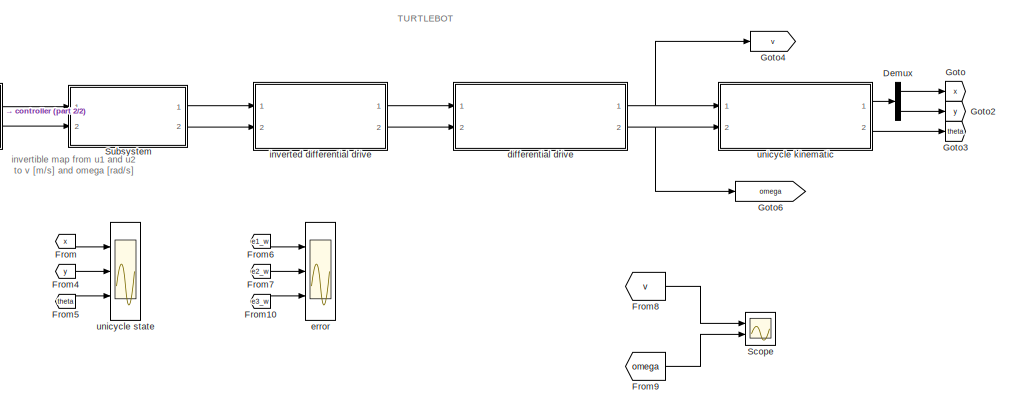
[diagram: root canvas - part 1/2, right side, full height]
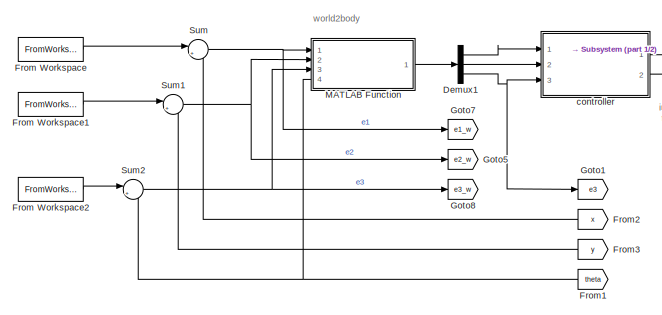
[diagram: root canvas - part 2/2, middle left region]
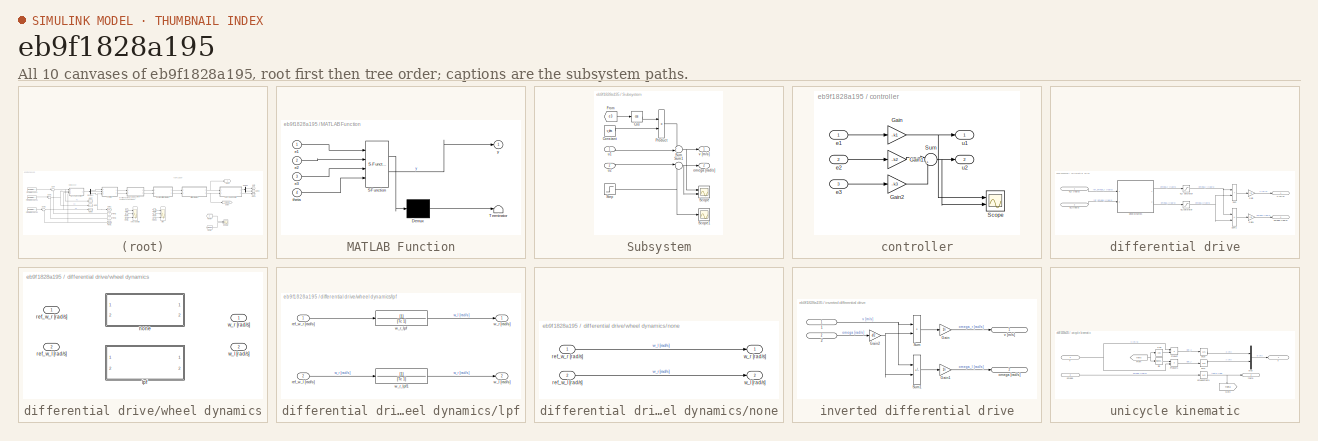
[diagram: thumbnail index - all 10 canvases of the model, root first then tree order]
MODEL slx_eb9f1828a195
KIND model
CONFIG AbsTol = auto
CONFIG EnableMultiTasking = off
CONFIG FixedStep = auto
CONFIG MaxStep = auto
CONFIG MinStep = auto
CONFIG RelTol = 1e-3
CONFIG SampleTimeConstraint = Unconstrained
CONFIG SolverName = VariableStepAuto
CONFIG StartTime = 0.0
CONFIG StopTime = 360
BLOCK [Demux] Demux
  Outputs = 2
  Ports = [1, 2]
BLOCK [Demux] Demux1
  Outputs = 3
  Ports = [1, 3]
BLOCK [From] From
  GotoTag = x
BLOCK [FromWorkspace] From Workspace
  VariableName = coords_x
BLOCK [FromWorkspace] From Workspace1
  VariableName = coords_y
BLOCK [FromWorkspace] From Workspace2
  VariableName = theta_des
BLOCK [From] From1
  GotoTag = theta
  NameLocation = top
BLOCK [From] From10
  GotoTag = e3_w
  TagVisibility = global
BLOCK [From] From2
  GotoTag = x
  NameLocation = top
BLOCK [From] From3
  GotoTag = y
  NameLocation = top
BLOCK [From] From4
  GotoTag = y
BLOCK [From] From5
  GotoTag = theta
BLOCK [From] From6
  GotoTag = e1_w
  TagVisibility = global
BLOCK [From] From7
  GotoTag = e2_w
  TagVisibility = global
BLOCK [From] From8
  GotoTag = v
BLOCK [From] From9
  GotoTag = omega
BLOCK [Goto] Goto
  GotoTag = x
BLOCK [Goto] Goto1
  GotoTag = e3
  TagVisibility = global
BLOCK [Goto] Goto2
  GotoTag = y
BLOCK [Goto] Goto3
  GotoTag = theta
BLOCK [Goto] Goto4
  GotoTag = v
BLOCK [Goto] Goto5
  GotoTag = e2_w
  TagVisibility = global
BLOCK [Goto] Goto6
  GotoTag = omega
BLOCK [Goto] Goto7
  GotoTag = e1_w
  TagVisibility = global
BLOCK [Goto] Goto8
  GotoTag = e3_w
  TagVisibility = global
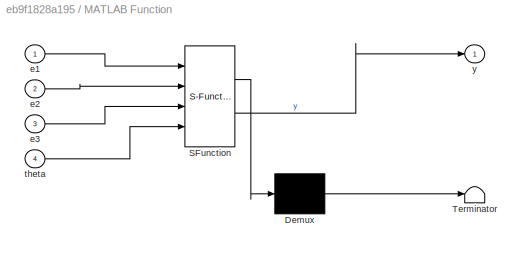
BLOCK [SubSystem] MATLAB Function
  ErrorFcn = Stateflow.Translate.translate
  PermitHierarchicalResolution = ExplicitOnly
  Ports = [4, 1]
  RequestExecContextInheritance = off
  SFBlockType = MATLAB Function
  TreatAsAtomicUnit = on
BLOCK [Demux] MATLAB Function/ Demux 
  Outputs = 1
  Ports = [1, 1]
BLOCK [S-Function] MATLAB Function/ SFunction 
  EnableBusSupport = on
  FunctionName = sf_sfun
  PortCounts = [4 2]
  Ports = [4, 2]
  SFcnIsStateOwnerBlock = off
  SFunctionDeploymentMode = off
  Tag = Stateflow S-Function 2
BLOCK [Terminator] MATLAB Function/ Terminator 
BLOCK [Inport] MATLAB Function/e1
BLOCK [Inport] MATLAB Function/e2
  Port = 2
BLOCK [Inport] MATLAB Function/e3
  Port = 3
BLOCK [Inport] MATLAB Function/theta
  Port = 4
BLOCK [Outport] MATLAB Function/y
BLOCK [Scope] Scope
  Floating = off
  NumInputPorts = 2
  Ports = [2]
  ScopeSpecificationString = Simulink.scopes.TimeScopeBlockCfg('CurrentConfiguration', extmgr.ConfigurationSet(extmgr.Configuration('Core','General UI',true),extmgr.Configuration('Core','Source UI',true),extmgr.Configuration('Sources','WiredSimulink',true,'DataLoggingVariableName','ScopeData1'),extmgr.Configuration('Visuals','Time Domain',true,'SerializedDisplays',{struct('MinYLimReal','-0.04863','MaxYLimReal','0.4377','YLabe...<+2072ch>
BLOCK [SubSystem] Subsystem
  NameLocation = top
  Ports = [2, 2]
  RequestExecContextInheritance = off
BLOCK [Constant] Subsystem/Constant
  Value = v_des
BLOCK [Trigonometry] Subsystem/Cos
  Operator = cos
  Ports = [1, 1]
BLOCK [From] Subsystem/From
  GotoTag = e3
  TagVisibility = global
BLOCK [Product] Subsystem/Product
  Ports = [2, 1]
BLOCK [Scope] Subsystem/Scope
  Floating = off
  NumInputPorts = 2
  Ports = [2]
  ScopeSpecificationString = Simulink.scopes.TimeScopeBlockCfg('CurrentConfiguration', extmgr.ConfigurationSet(extmgr.Configuration('Core','General UI',true),extmgr.Configuration('Core','Source UI',true),extmgr.Configuration('Sources','WiredSimulink',true,'DataLoggingVariableName','ScopeData1'),extmgr.Configuration('Visuals','Time Domain',true,'SerializedDisplays',{struct('MinYLimReal','-30.89803','MaxYLimReal','265.4994','YL...<+1427ch>
BLOCK [Scope] Subsystem/Scope1
  Floating = off
  NumInputPorts = 1
  Ports = [1]
  ScopeSpecificationString = Simulink.scopes.TimeScopeBlockCfg('CurrentConfiguration', extmgr.ConfigurationSet(extmgr.Configuration('Core','General UI',true),extmgr.Configuration('Core','Source UI',true),extmgr.Configuration('Sources','WiredSimulink',true,'DataLoggingVariableName','ScopeData1'),extmgr.Configuration('Visuals','Time Domain',true,'SerializedDisplays',{struct('MinYLimReal','-30.89803','MaxYLimReal','265.4994','YL...<+1417ch>
BLOCK [Step] Subsystem/Step
  After = w_des
  SampleTime = 0
  Time = rect_samples*Ts
BLOCK [Sum] Subsystem/Sum
  Inputs = +-|
  Ports = [2, 1]
BLOCK [Sum] Subsystem/Sum1
  Inputs = |-+
  Ports = [2, 1]
BLOCK [Outport] Subsystem/omega [rad//s]
  Port = 2
BLOCK [Inport] Subsystem/u1
BLOCK [Inport] Subsystem/u2
  Port = 2
BLOCK [Outport] Subsystem/v [m//s]
BLOCK [Sum] Sum
  Inputs = |+-
  Ports = [2, 1]
BLOCK [Sum] Sum1
  Inputs = |+-
  Ports = [2, 1]
BLOCK [Sum] Sum2
  Inputs = |+-
  Ports = [2, 1]
BLOCK [SubSystem] controller
  Ports = [3, 2]
  RequestExecContextInheritance = off
BLOCK [Gain] controller/Gain
  Gain = - k1
BLOCK [Gain] controller/Gain1
  Gain = - k2
BLOCK [Gain] controller/Gain2
  Gain = - k3
BLOCK [Scope] controller/Scope
  Floating = off
  NumInputPorts = 2
  Ports = [2]
  ScopeSpecificationString = Simulink.scopes.TimeScopeBlockCfg('CurrentConfiguration', extmgr.ConfigurationSet(extmgr.Configuration('Core','General UI',true),extmgr.Configuration('Core','Source UI',true),extmgr.Configuration('Sources','WiredSimulink',true,'DataLoggingVariableName','ScopeData2'),extmgr.Configuration('Visuals','Time Domain',true,'SerializedDisplays',{struct('MinYLimReal','-0.86576','MaxYLimReal','0.09622','YLab...<+2085ch>
BLOCK [Sum] controller/Sum
  Inputs = |++
  Ports = [2, 1]
BLOCK [Inport] controller/e1
BLOCK [Inport] controller/e2
  Port = 2
BLOCK [Inport] controller/e3
  Port = 3
BLOCK [Outport] controller/u1
BLOCK [Outport] controller/u2
  Port = 2
BLOCK [SubSystem] differential drive
  Ports = [2, 2]
  RequestExecContextInheritance = off
BLOCK [Gain] differential drive/Gain
  Gain = r/2
BLOCK [Gain] differential drive/Gain1
  Gain = r/d
BLOCK [Sum] differential drive/Sum
  IconShape = rectangular
  Ports = [2, 1]
BLOCK [Sum] differential drive/Sum1
  IconShape = rectangular
  Inputs = +-
  Ports = [2, 1]
BLOCK [Outport] differential drive/omega [rad//s]
  IconDisplay = Signal name
  Port = 2
  Unit = rad/s
BLOCK [Outport] differential drive/v [m//s]
  IconDisplay = Signal name
  Unit = m/s
BLOCK [Inport] differential drive/w_l [rad//s]
  IconDisplay = Signal name
  Port = 2
  Unit = rad/s
BLOCK [Saturate] differential drive/w_l saturator
  LowerLimit = wheelsSpeedLowerLimit
  UpperLimit = wheelsSpeedUpperLimit
BLOCK [Inport] differential drive/w_r [rad//s]
  IconDisplay = Signal name
  Unit = rad/s
BLOCK [Saturate] differential drive/w_r saturator
  LowerLimit = wheelsSpeedLowerLimit
  UpperLimit = wheelsSpeedUpperLimit
BLOCK [SubSystem] differential drive/wheel dynamics
  Ports = [2, 2]
  RequestExecContextInheritance = off
  Variant = on
BLOCK [SubSystem] differential drive/wheel dynamics/lpf
  Ports = [2, 2]
  RequestExecContextInheritance = off
  VariantControl = wheelDyEn==true
BLOCK [Inport] differential drive/wheel dynamics/lpf/ref_w_l [rad//s]
  Port = 2
BLOCK [Inport] differential drive/wheel dynamics/lpf/ref_w_r [rad//s]
BLOCK [Outport] differential drive/wheel dynamics/lpf/w_l [rad//s]
  Port = 2
BLOCK [Outport] differential drive/wheel dynamics/lpf/w_r [rad//s]
BLOCK [TransferFcn] differential drive/wheel dynamics/lpf/w_r_lpf
  ContinuousStateAttributes = 'w_r_lpf'
  Denominator = [Tc 1]
BLOCK [TransferFcn] differential drive/wheel dynamics/lpf/w_r_lpf1
  ContinuousStateAttributes = 'w_r_lpf'
  Denominator = [Tc 1]
BLOCK [SubSystem] differential drive/wheel dynamics/none
  Ports = [2, 2]
  RequestExecContextInheritance = off
  VariantControl = wheelDyEn==false
BLOCK [Inport] differential drive/wheel dynamics/none/ref_w_l [rad//s]
  Port = 2
BLOCK [Inport] differential drive/wheel dynamics/none/ref_w_r [rad//s]
BLOCK [Outport] differential drive/wheel dynamics/none/w_l [rad//s]
  Port = 2
BLOCK [Outport] differential drive/wheel dynamics/none/w_r [rad//s]
BLOCK [Inport] differential drive/wheel dynamics/ref_w_l [rad//s]
  Port = 2
BLOCK [Inport] differential drive/wheel dynamics/ref_w_r [rad//s]
BLOCK [Outport] differential drive/wheel dynamics/w_l [rad//s]
  Port = 2
BLOCK [Outport] differential drive/wheel dynamics/w_r [rad//s]
BLOCK [Scope] error
  Floating = off
  NumInputPorts = 3
  Ports = [3]
  ScopeSpecificationString = Simulink.scopes.TimeScopeBlockCfg('CurrentConfiguration', extmgr.ConfigurationSet(extmgr.Configuration('Core','General UI',true),extmgr.Configuration('Core','Source UI',true),extmgr.Configuration('Sources','WiredSimulink',true,'DataLoggingVariableName','error','DataLogging',true,'DataLoggingSaveFormat','StructureWithTime'),extmgr.Configuration('Visuals','Time Domain',true,'SerializedDisplays',{str...<+2786ch>
BLOCK [SubSystem] inverted differential drive
  Ports = [2, 2]
  RequestExecContextInheritance = off
BLOCK [Inport] inverted differential drive/1
  IconDisplay = Signal name
  Unit = m/s
BLOCK [Inport] inverted differential drive/2
  IconDisplay = Signal name
  Port = 2
  Unit = rad/s
BLOCK [Gain] inverted differential drive/Gain
  Gain = 1/r
BLOCK [Gain] inverted differential drive/Gain1
  Gain = 1/r
BLOCK [Gain] inverted differential drive/Gain2
  Gain = d/2
BLOCK [Sum] inverted differential drive/Sum
  IconShape = rectangular
  Ports = [2, 1]
BLOCK [Sum] inverted differential drive/Sum1
  IconShape = rectangular
  Inputs = +-
  Ports = [2, 1]
BLOCK [Outport] inverted differential drive/omega [rad//s]
  IconDisplay = Signal name
  Port = 2
  Unit = rad/s
BLOCK [Outport] inverted differential drive/v [m//s]
  IconDisplay = Signal name
  Unit = rad/s
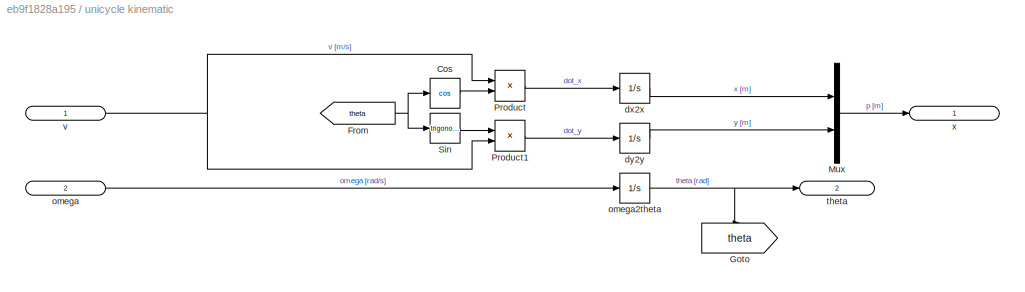
BLOCK [SubSystem] unicycle kinematic
  Ports = [2, 2]
  RequestExecContextInheritance = off
BLOCK [Trigonometry] unicycle kinematic/Cos
  Operator = cos
  Ports = [1, 1]
BLOCK [From] unicycle kinematic/From
  GotoTag = theta
BLOCK [Goto] unicycle kinematic/Goto
  GotoTag = theta
  NameLocation = left
BLOCK [Mux] unicycle kinematic/Mux
  DisplayOption = bar
  Inputs = 2
  Ports = [2, 1]
BLOCK [Product] unicycle kinematic/Product
  Ports = [2, 1]
BLOCK [Product] unicycle kinematic/Product1
  Ports = [2, 1]
BLOCK [Trigonometry] unicycle kinematic/Sin
  Ports = [1, 1]
BLOCK [Integrator] unicycle kinematic/dx2x
  ContinuousStateAttributes = 'pos_x'
  InitialCondition = x0
  Ports = [1, 1]
BLOCK [Integrator] unicycle kinematic/dy2y
  ContinuousStateAttributes = 'pos_y'
  InitialCondition = y0
  Ports = [1, 1]
BLOCK [Inport] unicycle kinematic/omega
  IconDisplay = Signal name
  Port = 2
  PortDimensions = 1
BLOCK [Integrator] unicycle kinematic/omega2theta
  ContinuousStateAttributes = 'theta'
  InitialCondition = theta0
  Ports = [1, 1]
BLOCK [Outport] unicycle kinematic/theta
  IconDisplay = Signal name
  Port = 2
  PortDimensions = 1
BLOCK [Inport] unicycle kinematic/v
  IconDisplay = Signal name
  PortDimensions = 1
BLOCK [Outport] unicycle kinematic/x
  IconDisplay = Signal name
  PortDimensions = 2
BLOCK [Scope] unicycle state
  Floating = off
  NumInputPorts = 3
  Ports = [3]
  ScopeSpecificationString = Simulink.scopes.TimeScopeBlockCfg('CurrentConfiguration', extmgr.ConfigurationSet(extmgr.Configuration('Core','General UI',true),extmgr.Configuration('Core','Source UI',true),extmgr.Configuration('Sources','WiredSimulink',true,'DataLoggingVariableName','output','DataLogging',true,'DataLoggingSaveFormat','StructureWithTime'),extmgr.Configuration('Visuals','Time Domain',true,'SerializedDisplays',{st...<+2801ch>
ANNOTATION (root): invertible map from u1 and u2 to v [m/s] and omega [rad/s]
ANNOTATION (root): TURTLEBOT
ANNOTATION (root): world2body
LINE Demux1:1 -> controller:1
LINE Demux1:2 -> controller:2
NET Demux1:3 -> Goto1:1, controller:3
LINE Demux:1 -> Goto:1
LINE Demux:2 -> Goto2:1
LINE From Workspace1:1 -> Sum1:1
LINE From Workspace2:1 -> Sum2:1
LINE From Workspace:1 -> Sum:1
LINE From10:1 -> error:3
NET From1:1 -> MATLAB Function:4, Sum2:2
LINE From2:1 -> Sum:2
LINE From3:1 -> Sum1:2
LINE From4:1 -> unicycle state:2
LINE From5:1 -> unicycle state:3
LINE From6:1 -> error:1
LINE From7:1 -> error:2
LINE From8:1 -> Scope:1
LINE From9:1 -> Scope:2
LINE From:1 -> unicycle state:1
LINE MATLAB Function:1 -> Demux1:1
LINE Subsystem/Constant:1 -> Subsystem/Product:2
LINE Subsystem/Cos:1 -> Subsystem/Product:1
LINE Subsystem/From:1 -> Subsystem/Cos:1
LINE Subsystem/Product:1 -> Subsystem/Sum:1
NET Subsystem/Step:1 -> Subsystem/Scope1:1, Subsystem/Sum1:2
NET Subsystem/Sum1:1 -> Subsystem/Scope:2, Subsystem/omega [rad//s]:1
NET Subsystem/Sum:1 -> Subsystem/Scope:1, Subsystem/v [m//s]:1
LINE Subsystem/u1:1 -> Subsystem/Sum:2
LINE Subsystem/u2:1 -> Subsystem/Sum1:1
LINE Subsystem:1 -> inverted differential drive:1
LINE Subsystem:2 -> inverted differential drive:2
NET Sum1:1 -> Goto5:1, MATLAB Function:2
NET Sum2:1 -> Goto8:1, MATLAB Function:3
NET Sum:1 -> Goto7:1, MATLAB Function:1
LINE controller/Gain1:1 -> controller/Sum:1
LINE controller/Gain2:1 -> controller/Sum:2
NET controller/Gain:1 -> controller/Scope:1, controller/u1:1
NET controller/Sum:1 -> controller/Scope:2, controller/u2:1
LINE controller/e1:1 -> controller/Gain:1
LINE controller/e2:1 -> controller/Gain1:1
LINE controller/e3:1 -> controller/Gain2:1
LINE controller:1 -> Subsystem:1
LINE controller:2 -> Subsystem:2
LINE differential drive/Gain1:1 -> differential drive/omega [rad//s]:1
LINE differential drive/Gain:1 -> differential drive/v [m//s]:1
LINE differential drive/Sum1:1 -> differential drive/Gain1:1
LINE differential drive/Sum:1 -> differential drive/Gain:1
LINE differential drive/w_l [rad//s]:1 -> differential drive/wheel dynamics:2
NET differential drive/w_l saturator:1 -> differential drive/Sum1:2, differential drive/Sum:2
LINE differential drive/w_r [rad//s]:1 -> differential drive/wheel dynamics:1
NET differential drive/w_r saturator:1 -> differential drive/Sum1:1, differential drive/Sum:1
LINE differential drive/wheel dynamics/lpf/ref_w_l [rad//s]:1 -> differential drive/wheel dynamics/lpf/w_r_lpf1:1
LINE differential drive/wheel dynamics/lpf/ref_w_r [rad//s]:1 -> differential drive/wheel dynamics/lpf/w_r_lpf:1
LINE differential drive/wheel dynamics/lpf/w_r_lpf1:1 -> differential drive/wheel dynamics/lpf/w_l [rad//s]:1
LINE differential drive/wheel dynamics/lpf/w_r_lpf:1 -> differential drive/wheel dynamics/lpf/w_r [rad//s]:1
LINE differential drive/wheel dynamics/none/ref_w_l [rad//s]:1 -> differential drive/wheel dynamics/none/w_l [rad//s]:1
LINE differential drive/wheel dynamics/none/ref_w_r [rad//s]:1 -> differential drive/wheel dynamics/none/w_r [rad//s]:1
LINE differential drive/wheel dynamics:1 -> differential drive/w_r saturator:1
LINE differential drive/wheel dynamics:2 -> differential drive/w_l saturator:1
NET differential drive:1 -> Goto4:1, unicycle kinematic:1
NET differential drive:2 -> Goto6:1, unicycle kinematic:2
NET inverted differential drive/1:1 -> inverted differential drive/Sum1:1, inverted differential drive/Sum:1
LINE inverted differential drive/2:1 -> inverted differential drive/Gain2:1
LINE inverted differential drive/Gain1:1 -> inverted differential drive/omega [rad//s]:1
NET inverted differential drive/Gain2:1 -> inverted differential drive/Sum1:2, inverted differential drive/Sum:2
LINE inverted differential drive/Gain:1 -> inverted differential drive/v [m//s]:1
LINE inverted differential drive/Sum1:1 -> inverted differential drive/Gain1:1
LINE inverted differential drive/Sum:1 -> inverted differential drive/Gain:1
LINE inverted differential drive:1 -> differential drive:1
LINE inverted differential drive:2 -> differential drive:2
LINE unicycle kinematic/Cos:1 -> unicycle kinematic/Product:2
NET unicycle kinematic/From:1 -> unicycle kinematic/Cos:1, unicycle kinematic/Sin:1
LINE unicycle kinematic/Mux:1 -> unicycle kinematic/x:1
LINE unicycle kinematic/Product1:1 -> unicycle kinematic/dy2y:1
LINE unicycle kinematic/Product:1 -> unicycle kinematic/dx2x:1
LINE unicycle kinematic/Sin:1 -> unicycle kinematic/Product1:1
LINE unicycle kinematic/dx2x:1 -> unicycle kinematic/Mux:1
LINE unicycle kinematic/dy2y:1 -> unicycle kinematic/Mux:2
NET unicycle kinematic/omega2theta:1 -> unicycle kinematic/Goto:1, unicycle kinematic/theta:1
LINE unicycle kinematic/omega:1 -> unicycle kinematic/omega2theta:1
NET unicycle kinematic/v:1 -> unicycle kinematic/Product1:2, unicycle kinematic/Product:1
LINE unicycle kinematic:1 -> Demux:1
LINE unicycle kinematic:2 -> Goto3:1
note: NET lines group one-source signal fan-out (src -> all destinations, sorted); 1:1 wires keep LINE
CHART MATLAB Function states=1 transitions=1
  STATE_LABEL 'eML_blk_kernel()'
  STATE_LABEL "SCRIPT:\nfunction y = w2b(e1, e2, e3, theta)\nx = [e1;e2;e3]; \nmat = [cos(theta), -sin(theta), 0;\n       sin(theta), cos(theta), 0;\n       0, 0, 1];\nu = ones(3,1);\nu = mat'*x;\ny = u;\n"
CHART  states=0 transitions=0
